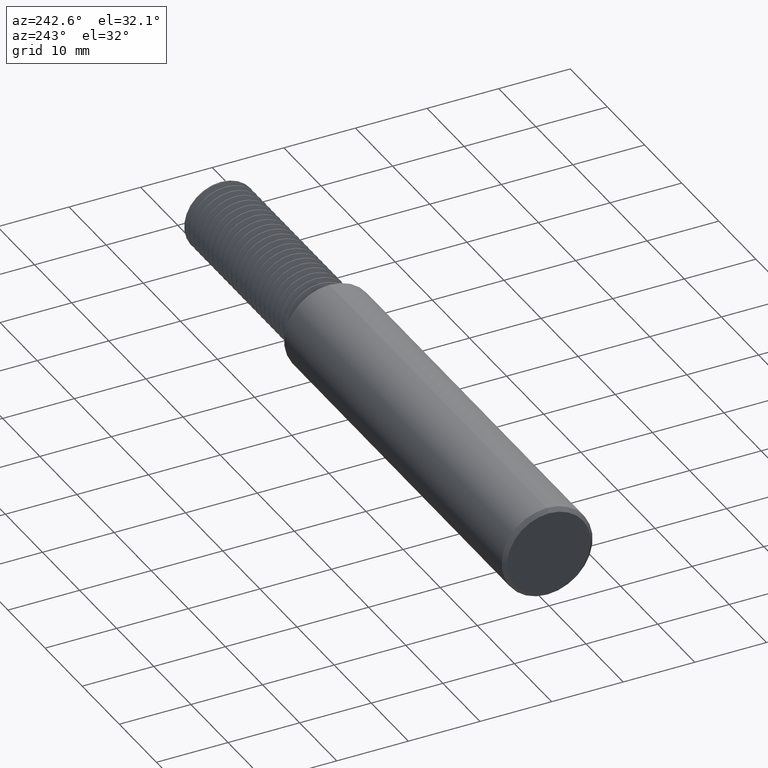
[diagram: clean part render]
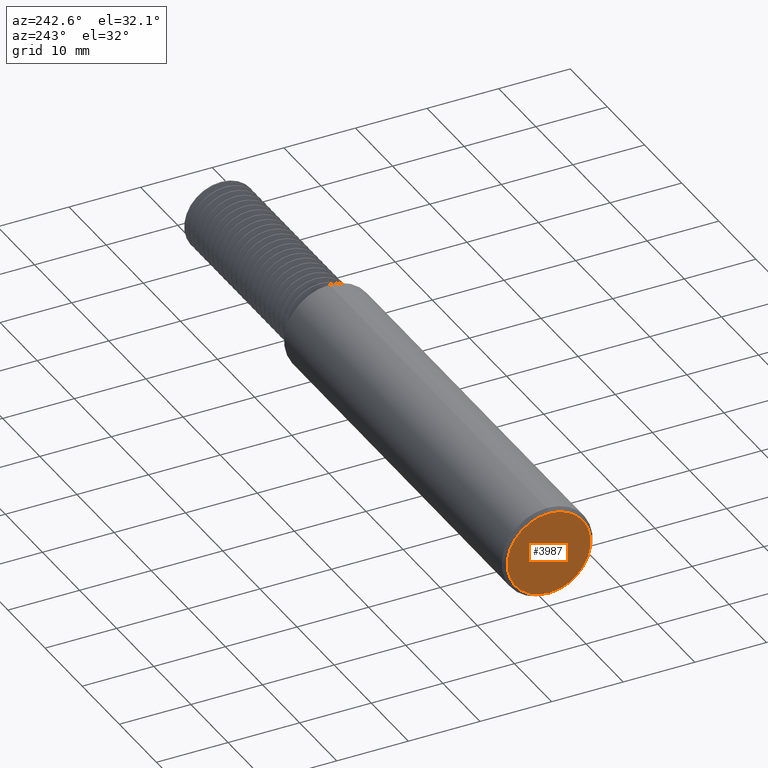
[diagram: same view with one face highlighted and labeled with its STEP entity id]
A machine part, auxiliary view. The second image highlights one B-rep face of the part: STEP entity #3987.
In plain terms, the highlighted planar face has unit normal (1, 0, 0).
Its self-contained STEP definition (entity closure, byte-faithful):
#21 = EDGE_CURVE ( 'NONE', #2622, #3522, #2027, .T. ) ;
#32 = CARTESIAN_POINT ( 'NONE',  ( 0.000000000000000000, 0.000000000000000000, -0.2298500000000002763 ) ) ;
#264 = EDGE_CURVE ( 'NONE', #3522, #2622, #1000, .T. ) ;
#606 = ORIENTED_EDGE ( 'NONE', *, *, #21, .T. ) ;
#623 = CARTESIAN_POINT ( 'NONE',  ( 0.000000000000000000, 0.000000000000000000, 0.000000000000000000 ) ) ;
#822 = EDGE_LOOP ( 'NONE', ( #606, #3277 ) ) ;
#842 = AXIS2_PLACEMENT_3D ( 'NONE', #1754, #987, #1362 ) ;
#924 = DIRECTION ( 'NONE',  ( 0.000000000000000000, 0.000000000000000000, -1.000000000000000000 ) ) ;
#987 = DIRECTION ( 'NONE',  ( -1.000000000000000000, -0.000000000000000000, -0.000000000000000000 ) ) ;
#997 = FACE_OUTER_BOUND ( 'NONE', #822, .T. ) ;
#1000 = CIRCLE ( 'NONE', #3117, 0.2298500000000002763 ) ;
#1362 = DIRECTION ( 'NONE',  ( 0.000000000000000000, 0.000000000000000000, -1.000000000000000000 ) ) ;
#1555 = DIRECTION ( 'NONE',  ( 0.000000000000000000, 0.000000000000000000, -1.000000000000000000 ) ) ;
#1740 = PLANE ( 'NONE',  #2549 ) ;
#1754 = CARTESIAN_POINT ( 'NONE',  ( 0.000000000000000000, 0.000000000000000000, 0.000000000000000000 ) ) ;
#1927 = CARTESIAN_POINT ( 'NONE',  ( 0.000000000000000000, 0.000000000000000000, 0.000000000000000000 ) ) ;
#2027 = CIRCLE ( 'NONE', #842, 0.2298500000000002763 ) ;
#2549 = AXIS2_PLACEMENT_3D ( 'NONE', #623, #2795, #924 ) ;
#2622 = VERTEX_POINT ( 'NONE', #32 ) ;
#2795 = DIRECTION ( 'NONE',  ( 1.000000000000000000, 0.000000000000000000, 0.000000000000000000 ) ) ;
#2989 = CARTESIAN_POINT ( 'NONE',  ( 0.000000000000000000, 2.937315347754928730E-17, 0.2298500000000002763 ) ) ;
#3117 = AXIS2_PLACEMENT_3D ( 'NONE', #1927, #3415, #1555 ) ;
#3277 = ORIENTED_EDGE ( 'NONE', *, *, #264, .T. ) ;
#3415 = DIRECTION ( 'NONE',  ( -1.000000000000000000, -0.000000000000000000, -0.000000000000000000 ) ) ;
#3522 = VERTEX_POINT ( 'NONE', #2989 ) ;
#3987 = ADVANCED_FACE ( 'NONE', ( #997 ), #1740, .F. ) ;